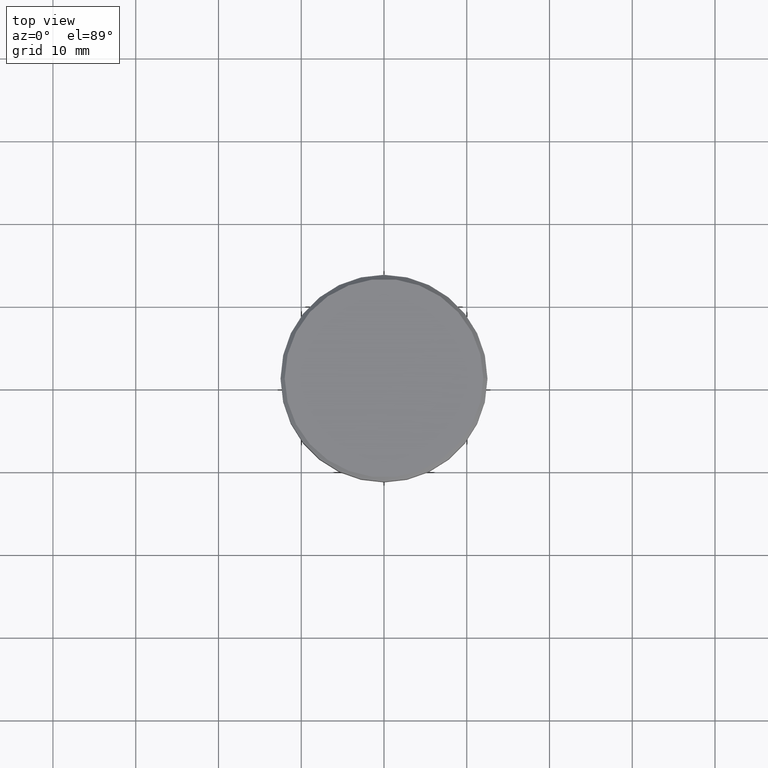
[diagram: clean part render]
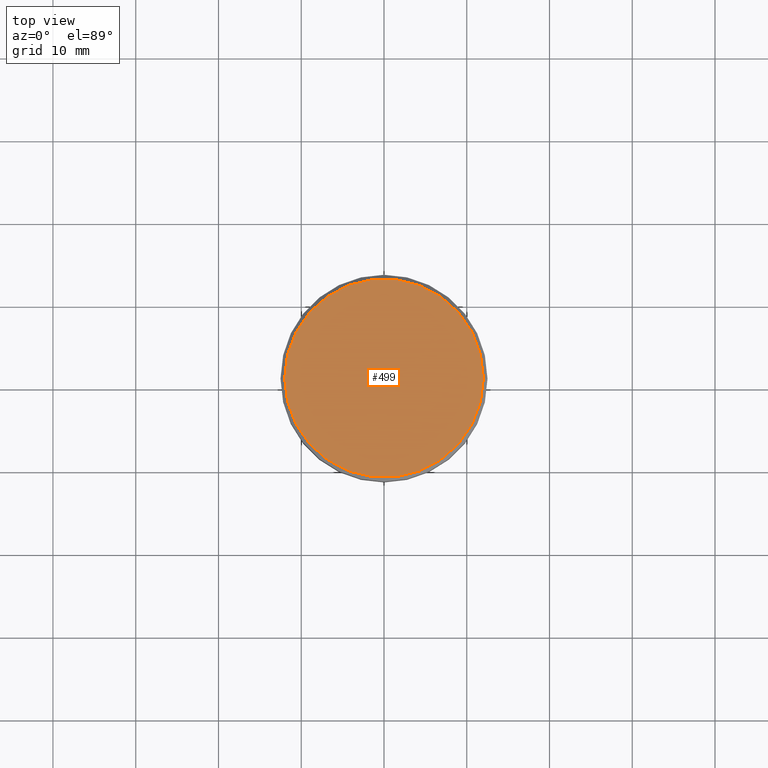
[diagram: same view with one face highlighted and labeled with its STEP entity id]
A machine part, top view. The second image highlights one B-rep face of the part: STEP entity #499.
In plain terms, the highlighted planar face has unit normal (0, -0, 1).
Its self-contained STEP definition (entity closure, byte-faithful):
#42 = ORIENTED_EDGE ( 'NONE', *, *, #769, .T. ) ;
#51 = VERTEX_POINT ( 'NONE', #1140 ) ;
#57 = CIRCLE ( 'NONE', #757, 11.99999999999999645 ) ;
#77 = AXIS2_PLACEMENT_3D ( 'NONE', #345, #229, #970 ) ;
#208 = CARTESIAN_POINT ( 'NONE',  ( 0.000000000000000000, 0.000000000000000000, 0.000000000000000000 ) ) ;
#217 = DIRECTION ( 'NONE',  ( -0.000000000000000000, -0.000000000000000000, 1.000000000000000000 ) ) ;
#222 = PLANE ( 'NONE',  #531 ) ;
#229 = DIRECTION ( 'NONE',  ( -0.000000000000000000, -0.000000000000000000, 1.000000000000000000 ) ) ;
#232 = VERTEX_POINT ( 'NONE', #642 ) ;
#345 = CARTESIAN_POINT ( 'NONE',  ( 0.000000000000000000, 0.000000000000000000, 0.000000000000000000 ) ) ;
#372 = DIRECTION ( 'NONE',  ( 1.000000000000000000, 0.000000000000000000, 0.000000000000000000 ) ) ;
#467 = CARTESIAN_POINT ( 'NONE',  ( 0.000000000000000000, 0.000000000000000000, 0.000000000000000000 ) ) ;
#496 = DIRECTION ( 'NONE',  ( 1.000000000000000000, 0.000000000000000000, 0.000000000000000000 ) ) ;
#499 = ADVANCED_FACE ( 'NONE', ( #663 ), #222, .T. ) ;
#502 = EDGE_LOOP ( 'NONE', ( #1055, #42 ) ) ;
#531 = AXIS2_PLACEMENT_3D ( 'NONE', #208, #572, #496 ) ;
#572 = DIRECTION ( 'NONE',  ( 0.000000000000000000, -0.000000000000000000, 1.000000000000000000 ) ) ;
#642 = CARTESIAN_POINT ( 'NONE',  ( -11.99999999999999645, 0.000000000000000000, 0.000000000000000000 ) ) ;
#663 = FACE_OUTER_BOUND ( 'NONE', #502, .T. ) ;
#757 = AXIS2_PLACEMENT_3D ( 'NONE', #467, #217, #372 ) ;
#769 = EDGE_CURVE ( 'NONE', #51, #232, #1109, .T. ) ;
#970 = DIRECTION ( 'NONE',  ( 1.000000000000000000, 0.000000000000000000, 0.000000000000000000 ) ) ;
#1055 = ORIENTED_EDGE ( 'NONE', *, *, #1096, .T. ) ;
#1096 = EDGE_CURVE ( 'NONE', #232, #51, #57, .T. ) ;
#1109 = CIRCLE ( 'NONE', #77, 11.99999999999999645 ) ;
#1140 = CARTESIAN_POINT ( 'NONE',  ( 11.99999999999999645, 1.500192328955507537E-15, 0.000000000000000000 ) ) ;